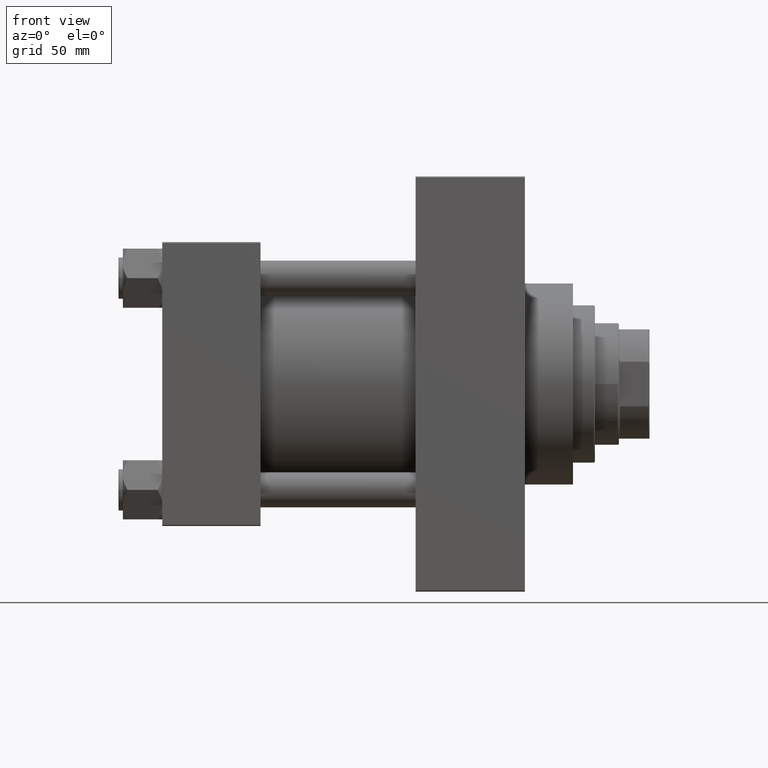
[diagram: clean part render]
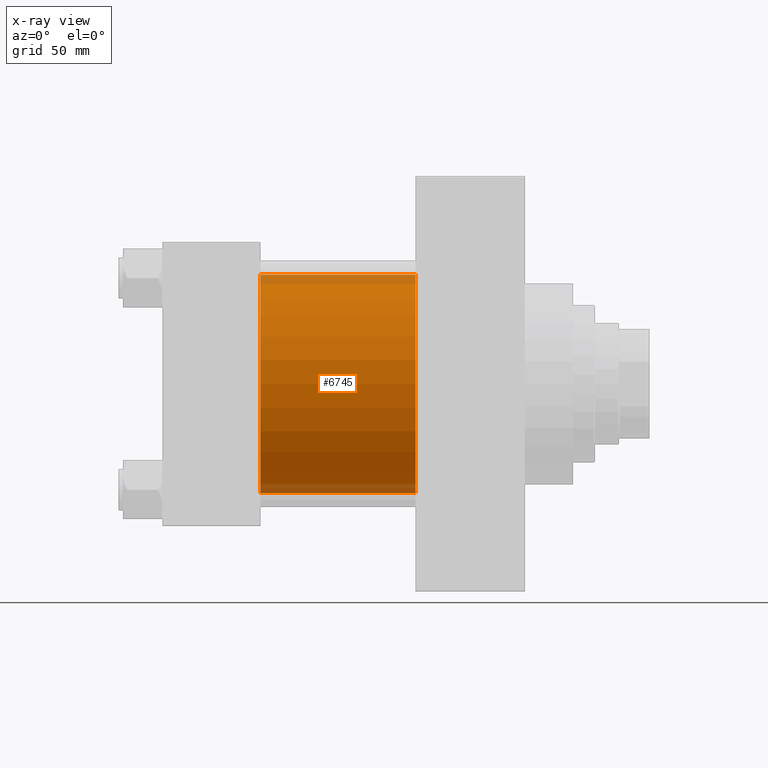
[diagram: x-ray — body ghosted, one internal face saturated and labeled with its STEP entity id]
A machine part, front view, then the same camera in x-ray: the body is ghosted and one INTERNAL B-rep face — a face not visible from any outside direction — is saturated and labeled: STEP entity #6745.
In plain terms, the highlighted cylindrical surface (partial cylindrical patch) has radius 50 mm, axis along (-1, -0, -0).
Its self-contained STEP definition (entity closure, byte-faithful):
#1802 = LINE ( 'NONE', #16497, #6554 ) ;
#2367 = DIRECTION ( 'NONE',  ( -1.000000000000000000, -0.000000000000000000, -0.000000000000000000 ) ) ;
#2854 = VERTEX_POINT ( 'NONE', #6544 ) ;
#2920 = VERTEX_POINT ( 'NONE', #21945 ) ;
#3855 = ORIENTED_EDGE ( 'NONE', *, *, #38431, .F. ) ;
#4361 = EDGE_CURVE ( 'NONE', #32379, #40405, #13947, .T. ) ;
#5452 = VECTOR ( 'NONE', #2367, 1000.000000000000000 ) ;
#6544 = CARTESIAN_POINT ( 'NONE',  ( 45.00000000000000000, -2.602085213965210642E-15, 50.00000000000000000 ) ) ;
#6554 = VECTOR ( 'NONE', #46451, 1000.000000000000000 ) ;
#6745 = ADVANCED_FACE ( 'NONE', ( #8260 ), #33825, .F. ) ;
#6803 = DIRECTION ( 'NONE',  ( 0.000000000000000000, 0.000000000000000000, -1.000000000000000000 ) ) ;
#8260 = FACE_OUTER_BOUND ( 'NONE', #38397, .T. ) ;
#10341 = EDGE_CURVE ( 'NONE', #2854, #2920, #41749, .T. ) ;
#11618 = AXIS2_PLACEMENT_3D ( 'NONE', #15709, #44701, #30429 ) ;
#13947 = CIRCLE ( 'NONE', #41682, 50.00000000000000000 ) ;
#14505 = CARTESIAN_POINT ( 'NONE',  ( 115.9999999999999858, -2.602085213965210642E-15, 0.000000000000000000 ) ) ;
#15709 = CARTESIAN_POINT ( 'NONE',  ( 115.9999999999999858, -2.602085213965210642E-15, 0.000000000000000000 ) ) ;
#15804 = DIRECTION ( 'NONE',  ( 0.000000000000000000, 0.000000000000000000, -1.000000000000000000 ) ) ;
#16497 = CARTESIAN_POINT ( 'NONE',  ( 115.9999999999999858, 3.521148781771555838E-15, -50.00000000000000000 ) ) ;
#18721 = CARTESIAN_POINT ( 'NONE',  ( 45.00000000000000000, -2.602085213965210642E-15, 0.000000000000000000 ) ) ;
#20914 = AXIS2_PLACEMENT_3D ( 'NONE', #18721, #41415, #15804 ) ;
#21945 = CARTESIAN_POINT ( 'NONE',  ( 45.00000000000000000, 3.521148781771555838E-15, -50.00000000000000000 ) ) ;
#22464 = DIRECTION ( 'NONE',  ( 1.000000000000000000, 0.000000000000000000, 0.000000000000000000 ) ) ;
#23160 = ORIENTED_EDGE ( 'NONE', *, *, #10341, .F. ) ;
#27878 = CARTESIAN_POINT ( 'NONE',  ( 115.9999999999999858, 3.521148781771555838E-15, -50.00000000000000000 ) ) ;
#30429 = DIRECTION ( 'NONE',  ( 0.000000000000000000, 0.000000000000000000, 1.000000000000000000 ) ) ;
#32379 = VERTEX_POINT ( 'NONE', #34006 ) ;
#33825 = CYLINDRICAL_SURFACE ( 'NONE', #11618, 50.00000000000000000 ) ;
#34006 = CARTESIAN_POINT ( 'NONE',  ( 115.9999999999999858, -2.602085213965210642E-15, 50.00000000000000000 ) ) ;
#36146 = CARTESIAN_POINT ( 'NONE',  ( 115.9999999999999858, -2.602085213965210642E-15, 50.00000000000000000 ) ) ;
#37179 = ORIENTED_EDGE ( 'NONE', *, *, #4361, .T. ) ;
#38397 = EDGE_LOOP ( 'NONE', ( #37179, #41445, #23160, #3855 ) ) ;
#38431 = EDGE_CURVE ( 'NONE', #32379, #2854, #39057, .T. ) ;
#39057 = LINE ( 'NONE', #36146, #5452 ) ;
#40405 = VERTEX_POINT ( 'NONE', #27878 ) ;
#41415 = DIRECTION ( 'NONE',  ( 1.000000000000000000, 0.000000000000000000, 0.000000000000000000 ) ) ;
#41445 = ORIENTED_EDGE ( 'NONE', *, *, #46525, .T. ) ;
#41682 = AXIS2_PLACEMENT_3D ( 'NONE', #14505, #22464, #6803 ) ;
#41749 = CIRCLE ( 'NONE', #20914, 50.00000000000000000 ) ;
#44701 = DIRECTION ( 'NONE',  ( -1.000000000000000000, -0.000000000000000000, -0.000000000000000000 ) ) ;
#46451 = DIRECTION ( 'NONE',  ( -1.000000000000000000, -0.000000000000000000, -0.000000000000000000 ) ) ;
#46525 = EDGE_CURVE ( 'NONE', #40405, #2920, #1802, .T. ) ;